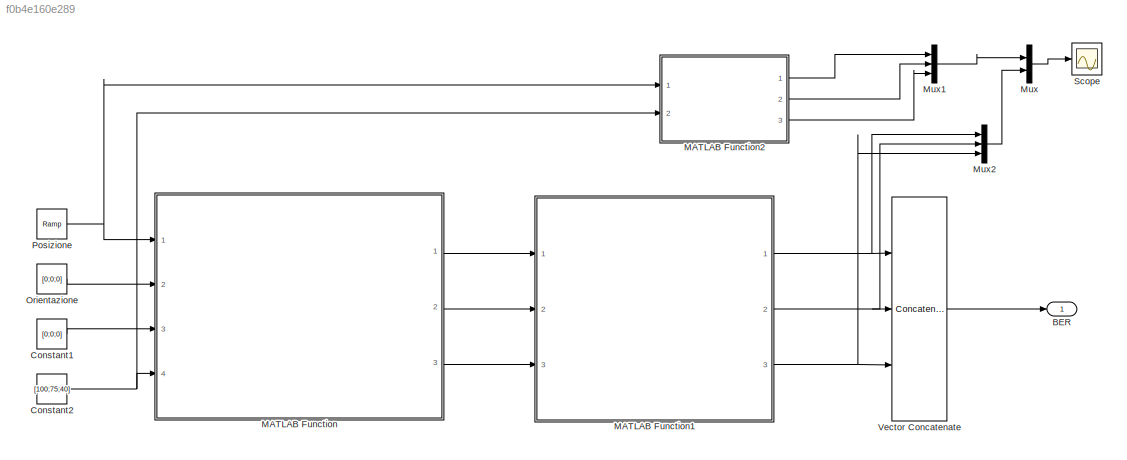
MODEL slx_f0b4e160e289
KIND model
CONFIG AbsTol = auto
CONFIG EnableMultiTasking = off
CONFIG FixedStep = auto
CONFIG MaxStep = auto
CONFIG MinStep = auto
CONFIG RelTol = 1e-3
CONFIG SampleTimeConstraint = Unconstrained
CONFIG Solver = VariableStepAuto
CONFIG SolverName = VariableStepAuto
CONFIG StartTime = 0.0
CONFIG StopTime = 10
BLOCK [Outport] BER
  VectorParamsAs1DForOutWhenUnconnected = off
BLOCK [Constant] Constant1
  Value = [0;0;0]
  VectorParams1D = off
BLOCK [Constant] Constant2
  Value = [100;75;40]
  VectorParams1D = off
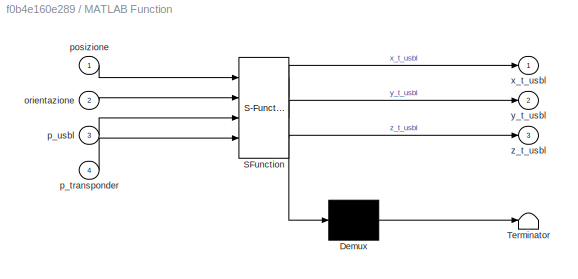
BLOCK [SubSystem] MATLAB Function
  ErrorFcn = Stateflow.Translate.translate
  PermitHierarchicalResolution = ExplicitOnly
  Ports = [4, 3]
  RequestExecContextInheritance = off
  SFBlockType = MATLAB Function
  TreatAsAtomicUnit = on
BLOCK [Demux] MATLAB Function/ Demux 
  Outputs = 1
  Ports = [1, 1]
BLOCK [S-Function] MATLAB Function/ SFunction 
  EnableBusSupport = on
  FunctionName = sf_sfun
  PortCounts = [4 4]
  Ports = [4, 4]
  SFcnIsStateOwnerBlock = off
  SFunctionDeploymentMode = off
  Tag = Stateflow S-Function 10
BLOCK [Terminator] MATLAB Function/ Terminator 
BLOCK [Inport] MATLAB Function/orientazione
  Port = 2
BLOCK [Inport] MATLAB Function/p_transponder
  Port = 4
BLOCK [Inport] MATLAB Function/p_usbl
  Port = 3
BLOCK [Inport] MATLAB Function/posizione
BLOCK [Outport] MATLAB Function/x_t_usbl
  VectorParamsAs1DForOutWhenUnconnected = off
BLOCK [Outport] MATLAB Function/y_t_usbl
  Port = 2
  VectorParamsAs1DForOutWhenUnconnected = off
BLOCK [Outport] MATLAB Function/z_t_usbl
  Port = 3
  VectorParamsAs1DForOutWhenUnconnected = off
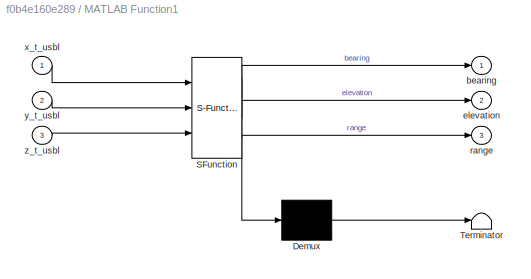
BLOCK [SubSystem] MATLAB Function1
  ErrorFcn = Stateflow.Translate.translate
  PermitHierarchicalResolution = ExplicitOnly
  Ports = [3, 3]
  RequestExecContextInheritance = off
  SFBlockType = MATLAB Function
  TreatAsAtomicUnit = on
BLOCK [Demux] MATLAB Function1/ Demux 
  Outputs = 1
  Ports = [1, 1]
BLOCK [S-Function] MATLAB Function1/ SFunction 
  EnableBusSupport = on
  FunctionName = sf_sfun
  PortCounts = [3 4]
  Ports = [3, 4]
  SFcnIsStateOwnerBlock = off
  SFunctionDeploymentMode = off
  Tag = Stateflow S-Function 11
BLOCK [Terminator] MATLAB Function1/ Terminator 
BLOCK [Outport] MATLAB Function1/bearing
  VectorParamsAs1DForOutWhenUnconnected = off
BLOCK [Outport] MATLAB Function1/elevation
  Port = 2
  VectorParamsAs1DForOutWhenUnconnected = off
BLOCK [Outport] MATLAB Function1/range
  Port = 3
  VectorParamsAs1DForOutWhenUnconnected = off
BLOCK [Inport] MATLAB Function1/x_t_usbl
BLOCK [Inport] MATLAB Function1/y_t_usbl
  Port = 2
BLOCK [Inport] MATLAB Function1/z_t_usbl
  Port = 3
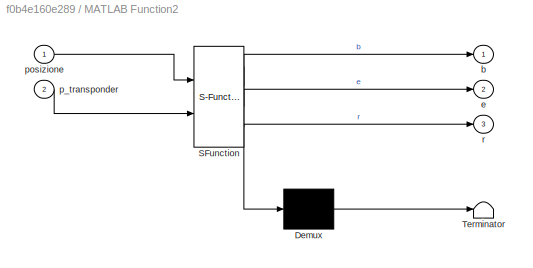
BLOCK [SubSystem] MATLAB Function2
  ErrorFcn = Stateflow.Translate.translate
  PermitHierarchicalResolution = ExplicitOnly
  Ports = [2, 3]
  RequestExecContextInheritance = off
  SFBlockType = MATLAB Function
  TreatAsAtomicUnit = on
BLOCK [Demux] MATLAB Function2/ Demux 
  Outputs = 1
  Ports = [1, 1]
BLOCK [S-Function] MATLAB Function2/ SFunction 
  EnableBusSupport = on
  FunctionName = sf_sfun
  PortCounts = [2 4]
  Ports = [2, 4]
  SFcnIsStateOwnerBlock = off
  SFunctionDeploymentMode = off
  Tag = Stateflow S-Function 2
BLOCK [Terminator] MATLAB Function2/ Terminator 
BLOCK [Outport] MATLAB Function2/b
  VectorParamsAs1DForOutWhenUnconnected = off
BLOCK [Outport] MATLAB Function2/e
  Port = 2
  VectorParamsAs1DForOutWhenUnconnected = off
BLOCK [Inport] MATLAB Function2/p_transponder
  Port = 2
BLOCK [Inport] MATLAB Function2/posizione
BLOCK [Outport] MATLAB Function2/r
  Port = 3
  VectorParamsAs1DForOutWhenUnconnected = off
BLOCK [Mux] Mux
  DisplayOption = bar
  Inputs = 2
  Ports = [2, 1]
BLOCK [Mux] Mux1
  DisplayOption = bar
  Inputs = 3
  Ports = [3, 1]
BLOCK [Mux] Mux2
  DisplayOption = bar
  Inputs = 3
  Ports = [3, 1]
BLOCK [Constant] Orientazione 
  Value = [0;0;0]
  VectorParams1D = off
BLOCK [Reference] Posizione  REF=simulink/Sources/Ramp
  Ports = [0, 1]
  SourceBlock = simulink/Sources/Ramp
  SourceProductBaseCode = SL
  SourceType = Ramp
BLOCK [Scope] Scope
  Floating = off
  NumInputPorts = 1
  Ports = [1]
  ScopeSpecificationString = Simulink.scopes.TimeScopeBlockCfg('CurrentConfiguration', extmgr.ConfigurationSet(extmgr.Configuration('Core','General UI',true),extmgr.Configuration('Core','Source UI',true),extmgr.Configuration('Sources','WiredSimulink',true),extmgr.Configuration('Visuals','Time Domain',true,'SerializedDisplays',{struct('MinYLimReal','-19.21586','MaxYLimReal','147.96181','YLabelReal','','MinYLimMag','0.00000','M...<+1657ch>
BLOCK [Concatenate] Vector Concatenate
  Mode = Multidimensional array
  NumInputs = 3
  Ports = [3, 1]
LINE Constant1:1 -> MATLAB Function:3
NET Constant2:1 -> MATLAB Function2:2, MATLAB Function:4
NET MATLAB Function1:1 -> Mux2:1, Vector Concatenate:1
NET MATLAB Function1:2 -> Mux2:2, Vector Concatenate:2
NET MATLAB Function1:3 -> Mux2:3, Vector Concatenate:3
LINE MATLAB Function2:1 -> Mux1:1
LINE MATLAB Function2:2 -> Mux1:2
LINE MATLAB Function2:3 -> Mux1:3
LINE MATLAB Function:1 -> MATLAB Function1:1
LINE MATLAB Function:2 -> MATLAB Function1:2
LINE MATLAB Function:3 -> MATLAB Function1:3
LINE Mux1:1 -> Mux:1
LINE Mux2:1 -> Mux:2
LINE Mux:1 -> Scope:1
LINE Orientazione :1 -> MATLAB Function:2
NET Posizione:1 -> MATLAB Function2:1, MATLAB Function:1
LINE Vector Concatenate:1 -> BER:1
note: NET lines group one-source signal fan-out (src -> all destinations, sorted); 1:1 wires keep LINE
CHART MATLAB Function2 states=1 transitions=1
  STATE_LABEL 'eML_blk_kernel()'
  STATE_LABEL 'SCRIPT:\nfunction [b,e,r] = norma(posizione, p_transponder)\n\nr = sqrt((-posizione(1)+p_transponder(1))^2+(-posizione(2)+p_transponder(2))^2+(-posizione(3)+p_transponder(3))^2);\nb = atan2((-posizione(2)+p_transponder(2)),(-posizione(1)+p_transponder(1)));\ne = asin((-posizione(3)+p_transponder(3))/r);\n\nend\n'
CHART MATLAB Function states=1 transitions=1
  STATE_LABEL 'eML_blk_kernel()'
  STATE_LABEL 'SCRIPT:\nfunction [x_t_usbl,y_t_usbl,z_t_usbl]= rot_ned_body(posizione,orientazione, p_usbl, p_transponder)\n \n roll = orientazione(1)\n pitch = orientazione(2)\n yaw = orientazione(3)\n xNorth = posizione(1)\n yEast = posizione(2)\n zDown = posizione(3)\n\n b2transp_ned = p_transponder-[xNorth;yEast;zDown]; %vettore distanza trasponder - veicolo espresso in ned \n Rx = [1 0 0; 0 cos(roll) -sin(roll); 0 sin...<+469ch>'
CHART MATLAB Function1 states=1 transitions=1
  STATE_LABEL 'eML_blk_kernel()'
  STATE_LABEL 'SCRIPT:\nfunction [bearing,elevation,range] = usbl(x_t_usbl, y_t_usbl, z_t_usbl)\n %coordinate sferiche in uscita dal sensore\n range = sqrt((x_t_usbl)^2+(y_t_usbl)^2+(z_t_usbl^2)); \n elevation = asin(z_t_usbl/range);\n bearing = atan2(y_t_usbl,x_t_usbl); \n\n end\n\n'
CHART  states=0 transitions=0
CHART  states=0 transitions=0
CHART  states=0 transitions=0
